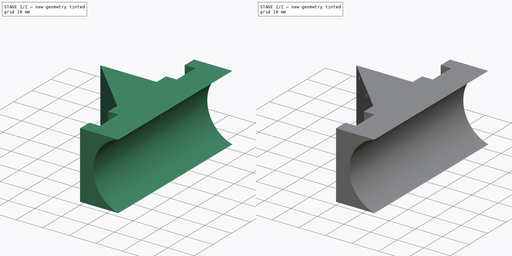
[diagram: build sequence overview — one tinted view per stage of 2, left to right]
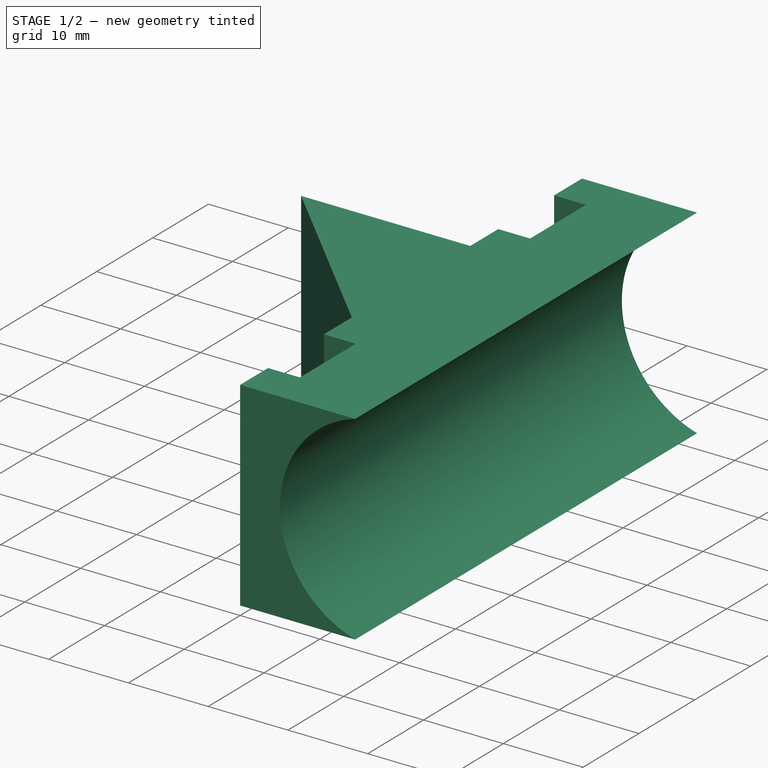
[diagram: stage 1 of 2 — iso view after this stage's code; geometry added in this stage tinted green]
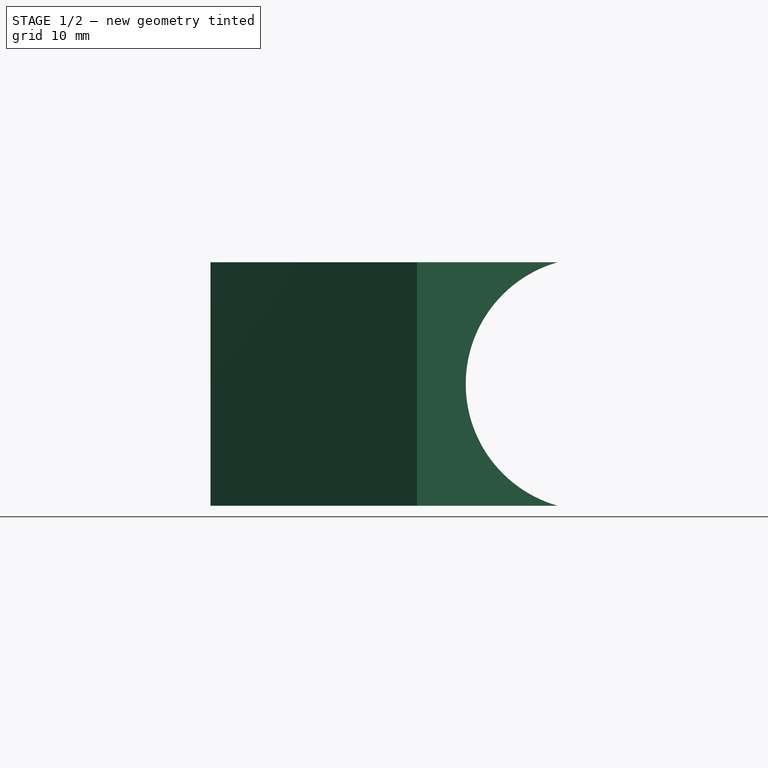
[diagram: stage 1 of 2 — front view after this stage's code; geometry added in this stage tinted green]
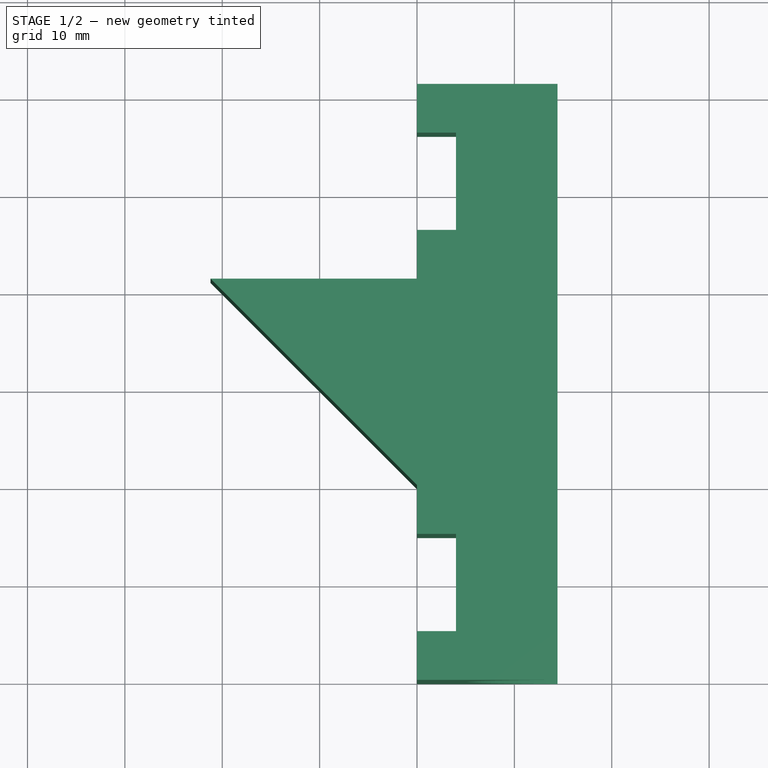
[diagram: stage 1 of 2 — top view after this stage's code; geometry added in this stage tinted green]
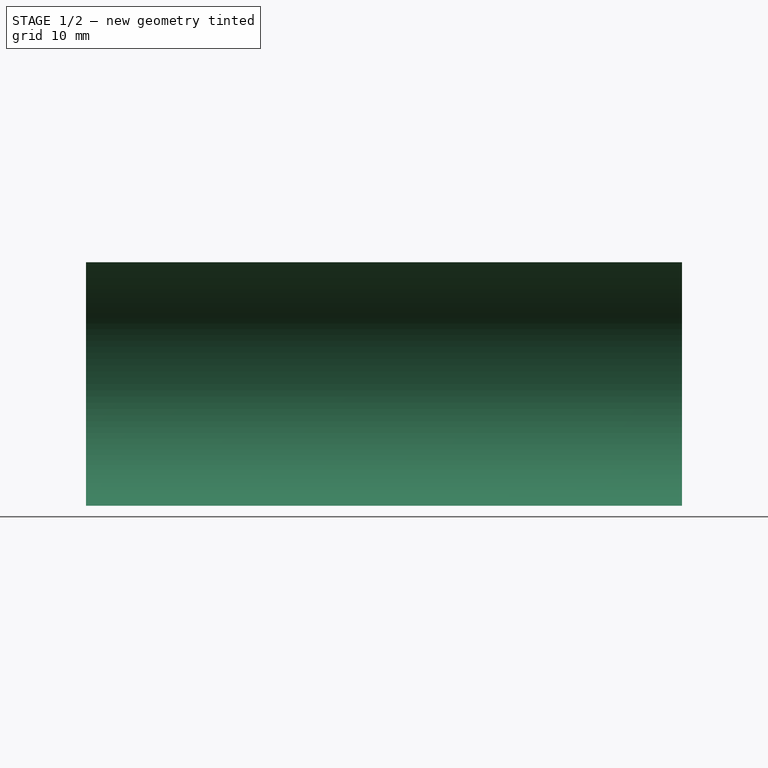
[diagram: stage 1 of 2 — right view after this stage's code; geometry added in this stage tinted green]
FCSTD DOCUMENT  (FreeCAD 2022.111R30764 (Git))
Label: octoprint camera mount
License: All rights reserved
LicenseURL: http://en.wikipedia.org/wiki/All_rights_reserved
objects: Sketcher::SketchObject×3, PartDesign::Pocket×2, PartDesign::Pad×1, PartDesign::Body×1
note: 13 computed .brp shape members not serialized (recipe doc carries the construction recipe); baked Part::Feature solids carry a one-line shape summary decoded from their .brp

FEATURE [Sketcher::SketchObject] Sketch
  FullyConstrained = true
  MapMode = 5
  Support = -> [XY_Plane]
  TreeRank = 11
  sketch-geometry (17):
    g0: LineSegment StartX=0 StartY=21.2132 StartZ=0 EndX=-21.2132 EndY=21.2132 EndZ=0
    g1: LineSegment StartX=-21.2132 StartY=21.2132 StartZ=0 EndX=0 EndY=0 EndZ=0
    g2: LineSegment StartX=0 StartY=-20 StartZ=0 EndX=20 EndY=-20 EndZ=0
    g3: LineSegment StartX=20 StartY=41.2132 StartZ=0 EndX=0 EndY=41.2132 EndZ=0
    g4: LineSegment StartX=20 StartY=41.2132 StartZ=0 EndX=20 EndY=-20 EndZ=0
    g5: LineSegment StartX=0 StartY=-20 StartZ=0 EndX=0 EndY=-15 EndZ=0
    g6: LineSegment StartX=0 StartY=-15 StartZ=0 EndX=4 EndY=-15 EndZ=0
    g7: LineSegment StartX=4 StartY=-15 StartZ=0 EndX=4 EndY=-5 EndZ=0
    g8: LineSegment StartX=4 StartY=-5 StartZ=0 EndX=0 EndY=-5 EndZ=0
    g9: LineSegment StartX=0 StartY=-5 StartZ=0 EndX=0 EndY=0 EndZ=0
    g10: LineSegment StartX=0 StartY=41.2132 StartZ=0 EndX=0 EndY=36.2132 EndZ=0
    g11: LineSegment StartX=0 StartY=36.2132 StartZ=0 EndX=4 EndY=36.2132 EndZ=0
    g12: LineSegment StartX=4 StartY=36.2132 StartZ=0 EndX=4 EndY=26.2132 EndZ=0
    g13: LineSegment StartX=4 StartY=26.2132 StartZ=0 EndX=0 EndY=26.2132 EndZ=0
    g14: LineSegment StartX=0 StartY=26.2132 StartZ=0 EndX=0 EndY=21.2132 EndZ=0
    g15: GeomPoint [constr] X=0 Y=31.2132 Z=0
    g16: GeomPoint [constr] X=0 Y=-10 Z=0
  constraints (44):
    c: PointOnObject(g3,g-2)
    c: PointOnObject(g0,g-2)
    c: Horizontal(g0)
    c: Coincident(g0,g1)
    c: Coincident(g1,g-1)
    c: PointOnObject(g2,g-2)
    c: Horizontal(g2)
    c: Horizontal(g3)
    c: Distance(g1) = 30
    c: DistanceY(g0,g3) = 20
    c: DistanceY(g2,g1) = 20
    c: DistanceX(g3,g3) = 20
    c: Angle(g-2,g1) = 0.785398
    c: Coincident(g4,g3)
    c: Coincident(g4,g2)
    c: Vertical(g4)
    c: Coincident(g2,g5)
    c: PointOnObject(g5,g-2)
    c: Coincident(g5,g6)
    c: Horizontal(g6)
    c: Coincident(g6,g7)
    c: Vertical(g7)
    c: Coincident(g7,g8)
    c: Horizontal(g8)
    c: Coincident(g8,g9)
    c: Coincident(g9,g1)
    c: Coincident(g3,g10)
    c: PointOnObject(g10,g-2)
    c: Coincident(g10,g11)
    c: Horizontal(g11)
    c: Coincident(g11,g12)
    c: Vertical(g12)
    c: Coincident(g12,g13)
    c: Horizontal(g13)
    c: Coincident(g13,g14)
    c: Coincident(g14,g0)
    c: Vertical(g11,g7)
    c: Symmetric(g8,g5,g16)
    c: Symmetric(g13,g10,g15)
    c: Symmetric(g0,g3,g15)
    c: Symmetric(g2,g1,g16)
    c: Equal(g7,g12)
    c: DistanceY(g12,g12) = 10
    c: DistanceX(g11,g11) = 4
FEATURE [PartDesign::Pad] Pad
  AddSubType = 0
  AlongSketchNormal = false
  CheckUpToFaceLimits = true
  ClaimChildren = false
  Direction = (0,0,1)
  Fit = 0
  FitJoin = 0
  InnerFit = 0
  InnerFitJoin = 0
  InnerTaperAngle = 0
  InnerTaperAngleRev = 0
  Length = 25
  Length2 = 100
  Linearize = true
  NewSolid = false
  Profile = -> Sketch
  Suppress = false
  TreeRank = 12
  Type = 0
  _ProfileBasedVersion = 1
FEATURE [Sketcher::SketchObject] Sketch001
  ExternalGeometry = -> [Pad]
  FullyConstrained = true
  MapMode = 5
  Placement = pos=(0,41.2132,0) rot=(0,0.707107,0.707107;3.14159rad)
  Support = -> [Pad]
  TreeRank = 13
  sketch-geometry (3):
    g0: Circle CenterX=-18 CenterY=12.5 CenterZ=0 NormalX=0 NormalY=0 NormalZ=1 AngleXU=0 Radius=13
    g1: GeomPoint [constr] X=-18 Y=25 Z=0
    g2: GeomPoint [constr] X=-18 Y=0 Z=0
  constraints (6):
    c: Diameter(g0) = 26
    c: PointOnObject(g1,g-6)
    c: PointOnObject(g2,g-4)
    c: Vertical(g1,g2)
    c: DistanceX(g1,g-6) = 18
    c: Symmetric(g1,g2,g0)
FEATURE [PartDesign::Pocket] Pocket
  AddSubType = 1
  BaseFeature = -> Pad
  CheckUpToFaceLimits = true
  ClaimChildren = false
  Fit = 0
  FitJoin = 0
  InnerFit = 0
  InnerFitJoin = 0
  InnerTaperAngle = 0
  InnerTaperAngleRev = 0
  Length = 5
  Length2 = 100
  Linearize = true
  NewSolid = false
  Profile = -> Sketch001
  Suppress = false
  TreeRank = 14
  Type = 1
  _ProfileBasedVersion = 1
  _Version = 1
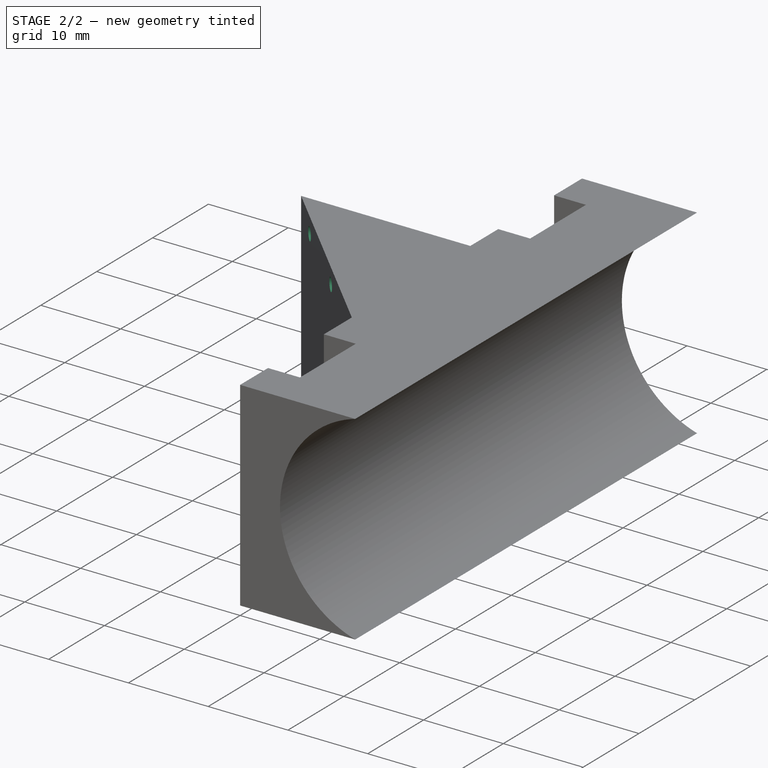
[diagram: stage 2 of 2 — iso view after this stage's code; geometry added in this stage tinted green]
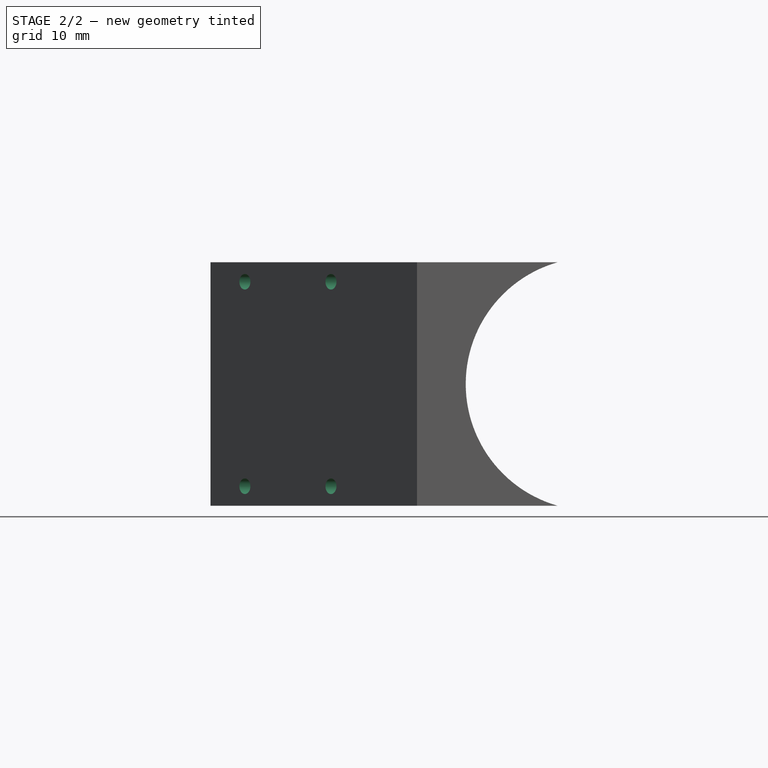
[diagram: stage 2 of 2 — front view after this stage's code; geometry added in this stage tinted green]
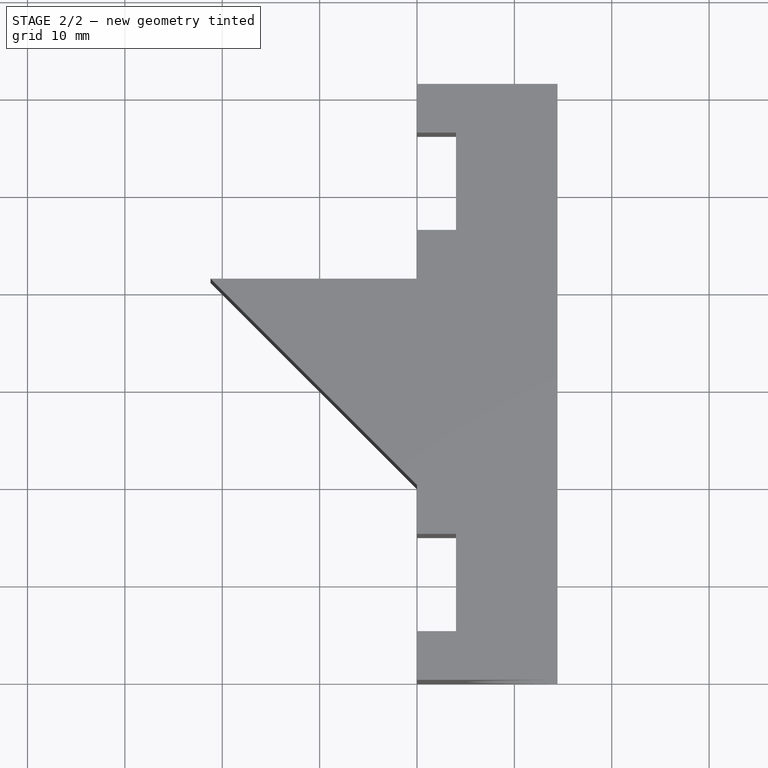
[diagram: stage 2 of 2 — top view after this stage's code; geometry added in this stage tinted green]
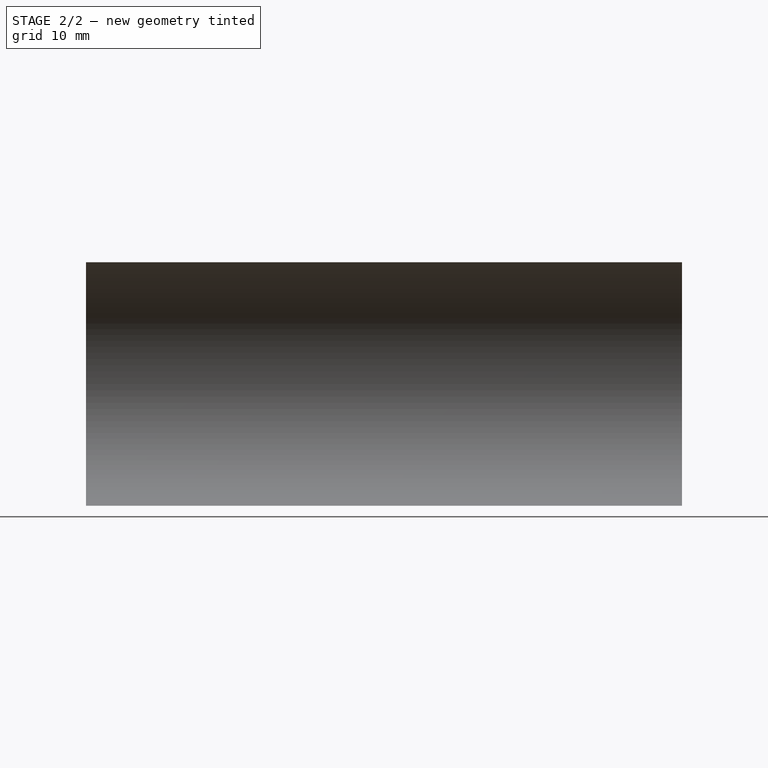
[diagram: stage 2 of 2 — right view after this stage's code; geometry added in this stage tinted green]
FEATURE [Sketcher::SketchObject] Sketch002
  ExternalGeometry = -> [Pocket]
  FullyConstrained = true
  MapMode = 5
  Placement = pos=(1.3e-15,1.3e-15,0) rot=(0.862856,-0.357407,-0.357407;1.71777rad)
  Support = -> [Pocket]
  TreeRank = 15
  sketch-geometry (7):
    g0: Circle CenterX=-25 CenterY=23 CenterZ=0 NormalX=0 NormalY=0 NormalZ=1 AngleXU=0 Radius=0.8
    g1: Circle CenterX=-25 CenterY=2 CenterZ=0 NormalX=0 NormalY=0 NormalZ=1 AngleXU=0 Radius=0.8
    g2: Circle CenterX=-12.5 CenterY=23 CenterZ=0 NormalX=0 NormalY=0 NormalZ=1 AngleXU=0 Radius=0.8
    g3: Circle CenterX=-12.5 CenterY=2 CenterZ=0 NormalX=0 NormalY=0 NormalZ=1 AngleXU=0 Radius=0.8
    g4: GeomPoint [constr] X=-30 Y=12.5 Z=0
    g5: GeomPoint [constr] X=0 Y=12.5 Z=0
    g6: LineSegment [constr] StartX=-30 StartY=12.5 StartZ=0 EndX=0 EndY=12.5 EndZ=0
  constraints (15):
    c: Equal(g0,g2)
    c: Equal(g2,g3)
    c: Equal(g3,g1)
    c: Diameter(g0) = 1.6
    c: Vertical(g2,g3)
    c: Symmetric(g-4,g-5,g4)
    c: Symmetric(g-3,g-5,g5)
    c: PointOnObject(g6,g-4)
    c: Coincident(g6,g5)
    c: Symmetric(g1,g0,g6)
    c: Symmetric(g2,g3,g6)
    c: Distance(g2,g3) = 21
    c: Distance(g0,g2) = 12.5
    c: Horizontal(g1,g3)
    c: DistanceX(g-5,g1) = 5
FEATURE [PartDesign::Pocket] Pocket001
  AddSubType = 1
  BaseFeature = -> Pocket
  CheckUpToFaceLimits = true
  ClaimChildren = false
  Fit = 0
  FitJoin = 0
  InnerFit = 0
  InnerFitJoin = 0
  InnerTaperAngle = 0
  InnerTaperAngleRev = 0
  Length = 6
  Length2 = 100
  Linearize = true
  NewSolid = false
  Profile = -> Sketch002
  Suppress = false
  TreeRank = 16
  Type = 0
  _ProfileBasedVersion = 1
  _Version = 1
FEATURE [PartDesign::Body] Body
  AutoGroupSolids = false
  ExportMode = 0
  Group = -> [Sketch,Pad,Sketch001,Pocket,Sketch002,Pocket001]
  Origin = -> Origin
  Tip = -> Pocket001
  TreeRank = 10
  _ExportChildren = -> [Pad,Pocket,Pocket001]
  _GroupVersion = 1
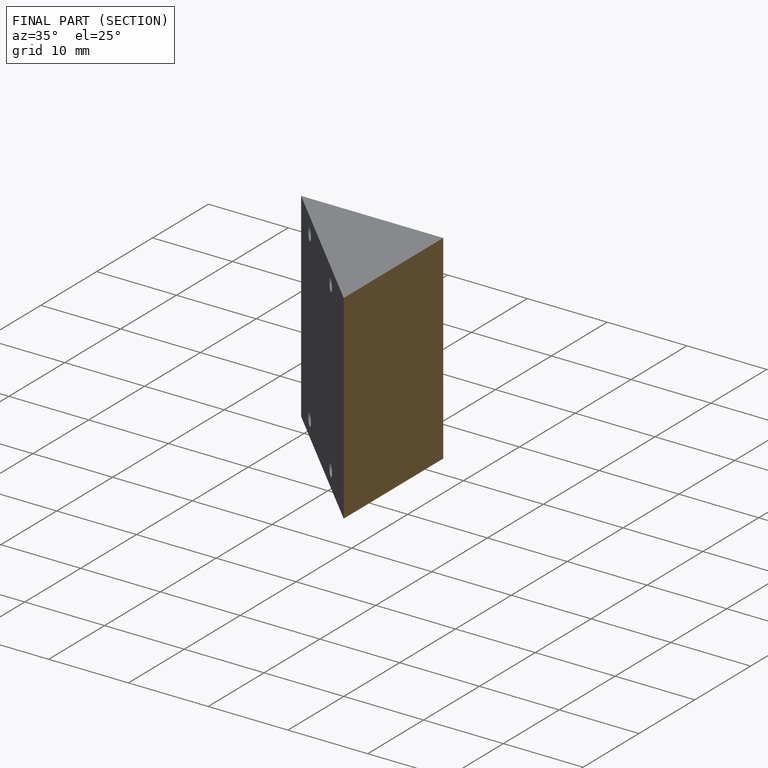
[diagram: finished part — half-section view (interior)]
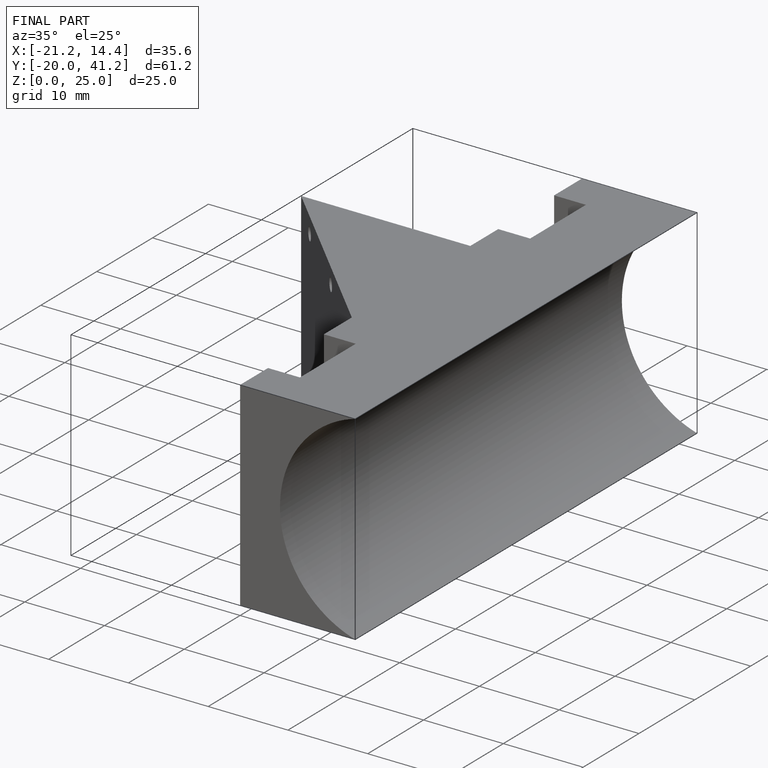
[diagram: finished part — iso view with bounding-box wireframe]
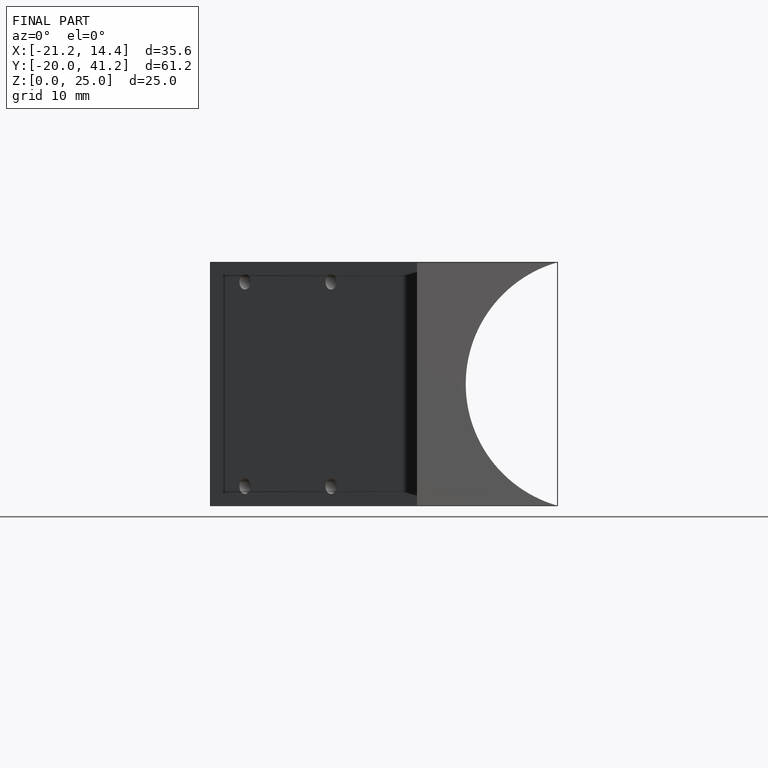
[diagram: finished part — front view with bounding-box wireframe]
